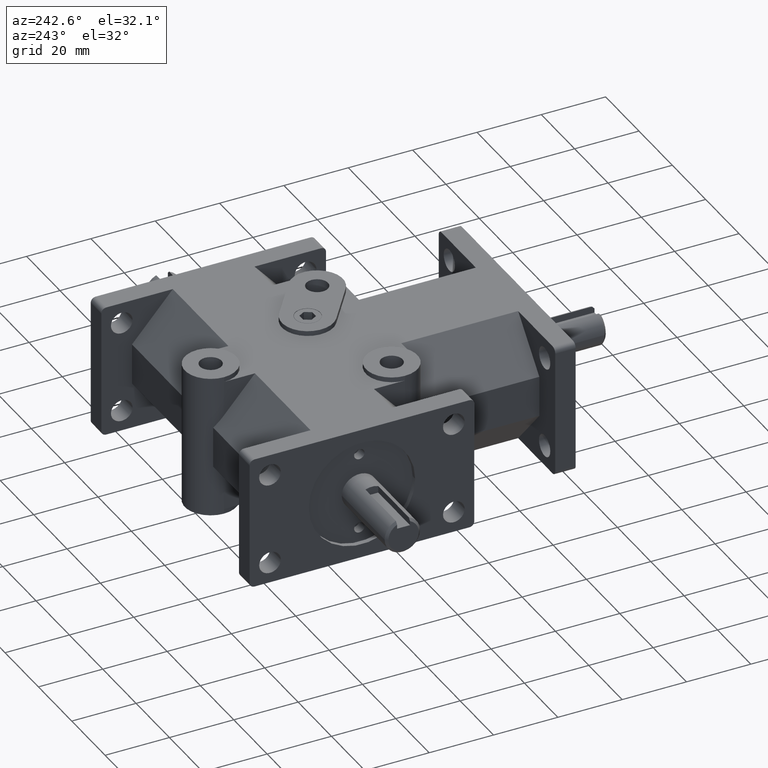
[diagram: clean part render]
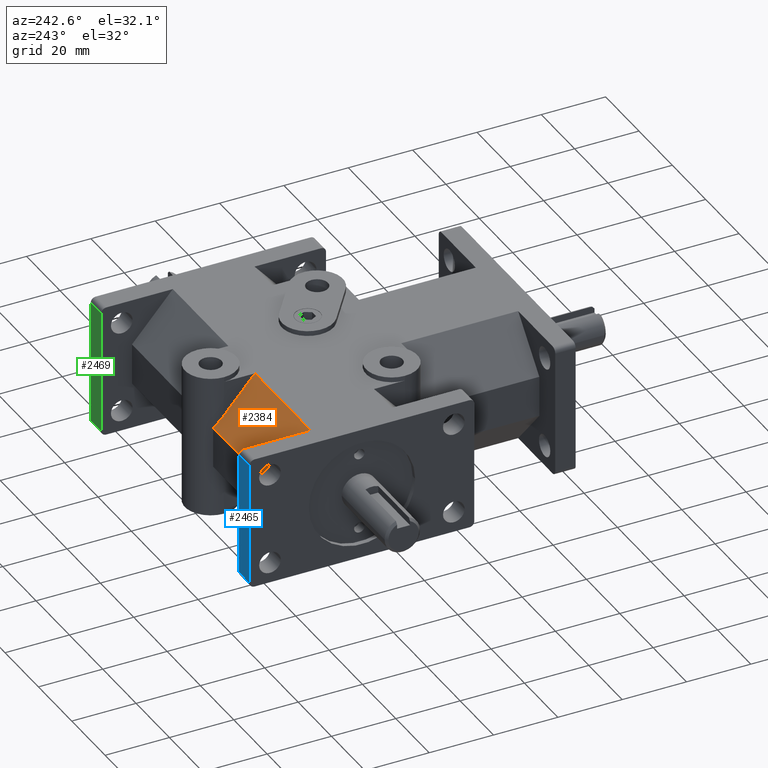
[diagram: same view with three faces highlighted in distinct colors, each labeled with its STEP entity id]
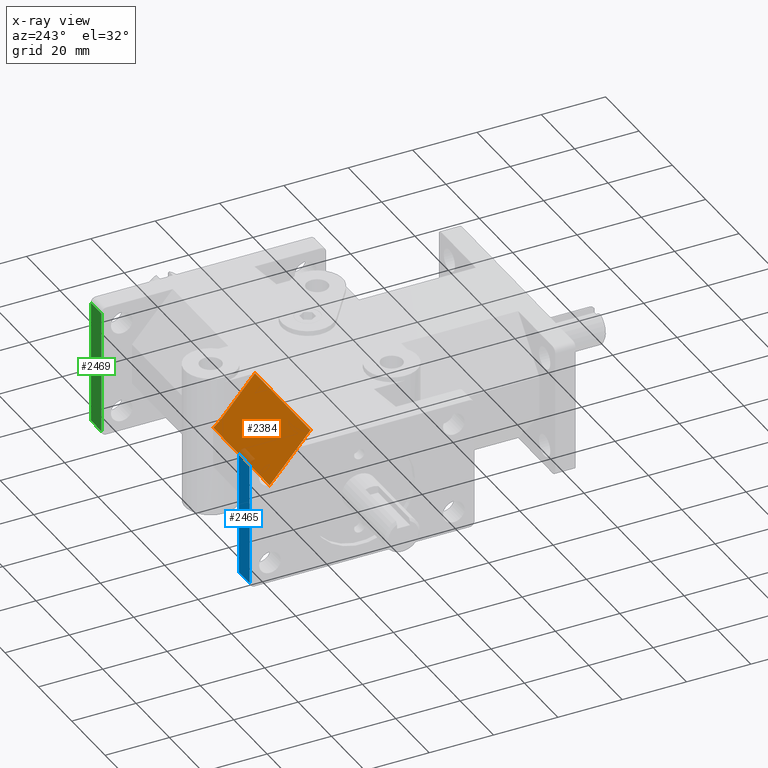
[diagram: x-ray of the same camera — body ghosted, the three highlighted faces saturated]
A machine part, auxiliary view with three faces highlighted in distinct colors.
The next image is the same camera in x-ray (body ghosted, the three faces saturated) — at least one of them is partly hidden behind the body in this view.
Their STEP definitions:

[orange] entity #2384 — the highlighted planar face has unit normal (0, -0.7489, -0.6627).
#226=FACE_OUTER_BOUND('',#361,.T.);
#361=EDGE_LOOP('',(#1621,#1622,#1623,#1624,#1625));
#540=ELLIPSE('',#2541,12.0730291425516,8.00099999999999);
#573=LINE('',#3598,#801);
#574=LINE('',#3600,#802);
#575=LINE('',#3602,#803);
#576=LINE('',#3603,#804);
#801=VECTOR('',#2841,1.);
#802=VECTOR('',#2842,1.);
#803=VECTOR('',#2843,1.);
#804=VECTOR('',#2844,1.);
#1036=VERTEX_POINT('',#3594);
#1037=VERTEX_POINT('',#3595);
#1038=VERTEX_POINT('',#3597);
#1039=VERTEX_POINT('',#3599);
#1040=VERTEX_POINT('',#3601);
#1269=EDGE_CURVE('',#1036,#1037,#540,.T.);
#1270=EDGE_CURVE('',#1038,#1036,#573,.T.);
#1271=EDGE_CURVE('',#1039,#1038,#574,.T.);
#1272=EDGE_CURVE('',#1040,#1039,#575,.T.);
#1273=EDGE_CURVE('',#1037,#1040,#576,.T.);
#1621=ORIENTED_EDGE('',*,*,#1269,.F.);
#1622=ORIENTED_EDGE('',*,*,#1270,.F.);
#1623=ORIENTED_EDGE('',*,*,#1271,.F.);
#1624=ORIENTED_EDGE('',*,*,#1272,.F.);
#1625=ORIENTED_EDGE('',*,*,#1273,.F.);
#2297=PLANE('',#2540);
#2384=ADVANCED_FACE('',(#226),#2297,.F.);
#2540=AXIS2_PLACEMENT_3D('',#3593,#2837,#2838);
#2541=AXIS2_PLACEMENT_3D('',#3596,#2839,#2840);
#2837=DIRECTION('center_axis',(0.,-0.748870055165724,-0.662716862978517));
#2838=DIRECTION('ref_axis',(0.,-0.662716862978517,0.748870055165724));
#2839=DIRECTION('center_axis',(0.,0.748870055165724,0.662716862978517));
#2840=DIRECTION('ref_axis',(0.,0.662716862978517,-0.748870055165724));
#2841=DIRECTION('',(1.,0.,0.));
#2842=DIRECTION('',(0.,0.662716862978517,-0.748870055165724));
#2843=DIRECTION('',(-1.,0.,0.));
#2844=DIRECTION('',(0.,-0.662716862978517,0.748870055165724));
#3593=CARTESIAN_POINT('Origin',(41.275,85.725,20.701));
#3594=CARTESIAN_POINT('',(-7.39768186663903,98.425,6.35));
#3595=CARTESIAN_POINT('',(-8.001,95.377,9.79424000000001));
#3596=CARTESIAN_POINT('Origin',(-5.63993296509579E-15,95.377,9.79423999999999));
#3597=CARTESIAN_POINT('',(-41.275,98.425,6.35));
#3598=CARTESIAN_POINT('',(41.275,98.425,6.35));
#3599=CARTESIAN_POINT('',(-41.275,85.725,20.701));
#3600=CARTESIAN_POINT('',(-41.275,85.725,20.701));
#3601=CARTESIAN_POINT('',(-8.001,85.725,20.701));
#3602=CARTESIAN_POINT('',(20.6375,85.725,20.701));
#3603=CARTESIAN_POINT('',(-8.001,94.03528468137,11.3103783100519));

[blue] entity #2465 — the highlighted planar face has unit normal (0, 1, 0).
#307=FACE_OUTER_BOUND('',#471,.T.);
#471=EDGE_LOOP('',(#2056,#2057,#2058,#2059));
#672=LINE('',#3932,#900);
#677=LINE('',#3956,#905);
#693=LINE('',#4016,#921);
#733=LINE('',#4126,#961);
#900=VECTOR('',#3148,1.);
#905=VECTOR('',#3173,1.);
#921=VECTOR('',#3237,1.);
#961=VECTOR('',#3347,1.);
#1150=VERTEX_POINT('',#3929);
#1151=VERTEX_POINT('',#3931);
#1159=VERTEX_POINT('',#3952);
#1160=VERTEX_POINT('',#3954);
#1426=EDGE_CURVE('',#1150,#1151,#672,.T.);
#1438=EDGE_CURVE('',#1160,#1159,#677,.T.);
#1470=EDGE_CURVE('',#1159,#1150,#693,.T.);
#1528=EDGE_CURVE('',#1160,#1151,#733,.T.);
#2056=ORIENTED_EDGE('',*,*,#1426,.F.);
#2057=ORIENTED_EDGE('',*,*,#1470,.F.);
#2058=ORIENTED_EDGE('',*,*,#1438,.F.);
#2059=ORIENTED_EDGE('',*,*,#1528,.T.);
#2348=PLANE('',#2714);
#2465=ADVANCED_FACE('',(#307),#2348,.T.);
#2714=AXIS2_PLACEMENT_3D('',#4125,#3345,#3346);
#3148=DIRECTION('',(1.,0.,0.));
#3173=DIRECTION('',(-1.,0.,0.));
#3237=DIRECTION('',(0.,0.,-1.));
#3345=DIRECTION('center_axis',(0.,1.,0.));
#3346=DIRECTION('ref_axis',(0.,0.,-1.));
#3347=DIRECTION('',(0.,0.,-1.));
#3929=CARTESIAN_POINT('',(-47.625,107.95,-19.177));
#3931=CARTESIAN_POINT('',(-41.275,107.95,-19.177));
#3932=CARTESIAN_POINT('',(-20.6375,107.95,-19.177));
#3952=CARTESIAN_POINT('',(-47.625,107.95,19.177));
#3954=CARTESIAN_POINT('',(-41.275,107.95,19.177));
#3956=CARTESIAN_POINT('',(-20.6375,107.95,19.177));
#4016=CARTESIAN_POINT('',(-47.625,107.95,0.));
#4125=CARTESIAN_POINT('Origin',(-41.275,107.95,0.));
#4126=CARTESIAN_POINT('',(-41.275,107.95,0.));

[green] entity #2469 — the highlighted planar face has unit normal (0, 1, 0).
#311=FACE_OUTER_BOUND('',#477,.T.);
#477=EDGE_LOOP('',(#2078,#2079,#2080,#2081));
#679=LINE('',#3965,#907);
#680=LINE('',#3970,#908);
#696=LINE('',#4028,#924);
#736=LINE('',#4137,#964);
#907=VECTOR('',#3181,1.);
#908=VECTOR('',#3186,1.);
#924=VECTOR('',#3250,1.);
#964=VECTOR('',#3362,1.);
#1161=VERTEX_POINT('',#3958);
#1164=VERTEX_POINT('',#3963);
#1165=VERTEX_POINT('',#3967);
#1166=VERTEX_POINT('',#3969);
#1442=EDGE_CURVE('',#1164,#1161,#679,.T.);
#1444=EDGE_CURVE('',#1165,#1166,#680,.T.);
#1477=EDGE_CURVE('',#1166,#1164,#696,.T.);
#1533=EDGE_CURVE('',#1165,#1161,#736,.T.);
#2078=ORIENTED_EDGE('',*,*,#1442,.F.);
#2079=ORIENTED_EDGE('',*,*,#1477,.F.);
#2080=ORIENTED_EDGE('',*,*,#1444,.F.);
#2081=ORIENTED_EDGE('',*,*,#1533,.T.);
#2350=PLANE('',#2720);
#2469=ADVANCED_FACE('',(#311),#2350,.T.);
#2720=AXIS2_PLACEMENT_3D('',#4136,#3360,#3361);
#3181=DIRECTION('',(1.,0.,0.));
#3186=DIRECTION('',(-1.,0.,0.));
#3250=DIRECTION('',(0.,0.,-1.));
#3360=DIRECTION('center_axis',(0.,1.,0.));
#3361=DIRECTION('ref_axis',(0.,0.,-1.));
#3362=DIRECTION('',(0.,0.,-1.));
#3958=CARTESIAN_POINT('',(47.625,107.95,-19.177));
#3963=CARTESIAN_POINT('',(41.275,107.95,-19.177));
#3965=CARTESIAN_POINT('',(23.8125,107.95,-19.177));
#3967=CARTESIAN_POINT('',(47.625,107.95,19.177));
#3969=CARTESIAN_POINT('',(41.275,107.95,19.177));
#3970=CARTESIAN_POINT('',(23.8125,107.95,19.177));
#4028=CARTESIAN_POINT('',(41.275,107.95,0.));
#4136=CARTESIAN_POINT('Origin',(47.625,107.95,0.));
#4137=CARTESIAN_POINT('',(47.625,107.95,0.));